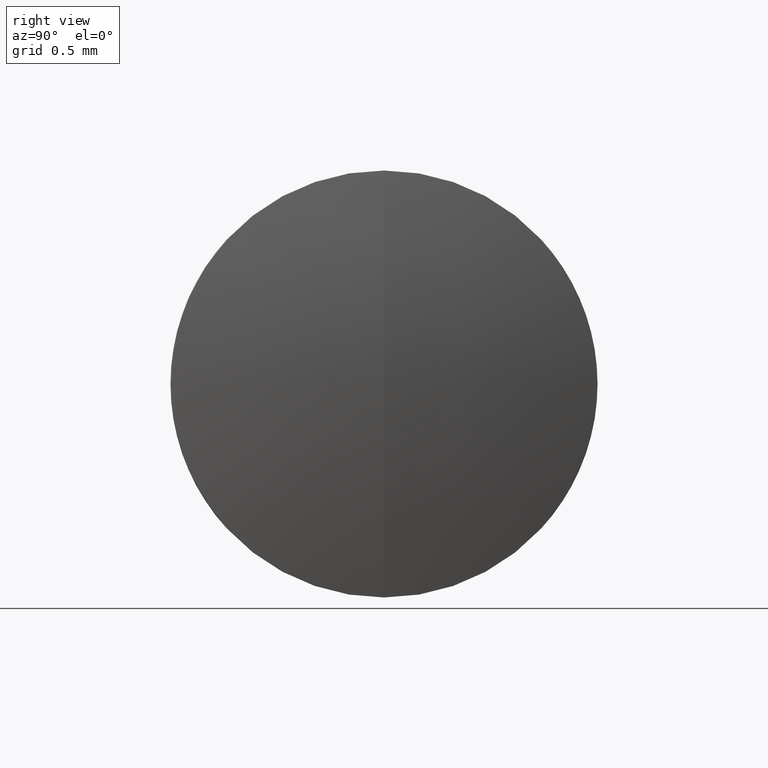
[diagram: clean part render]
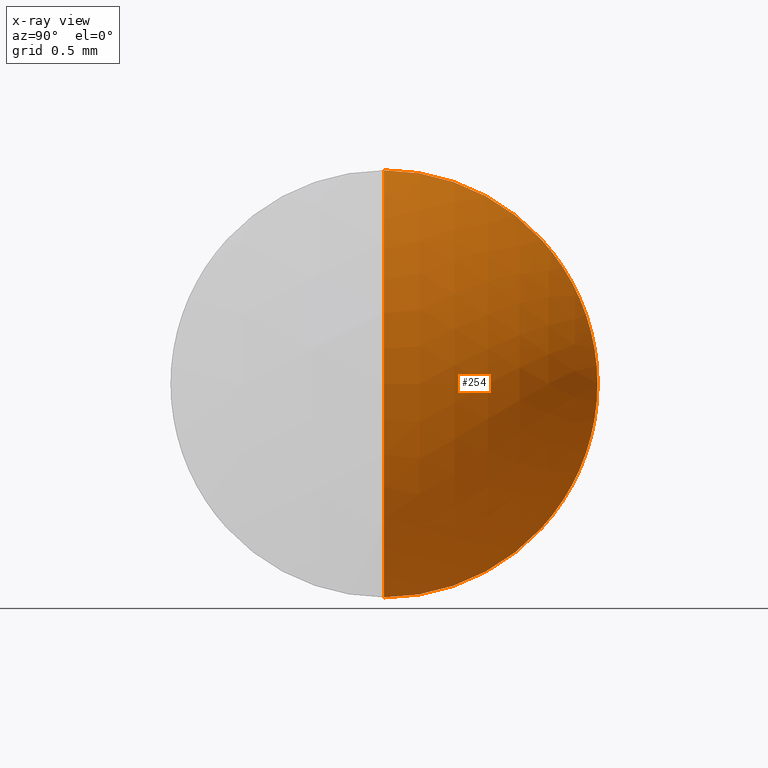
[diagram: x-ray — body ghosted, one internal face saturated and labeled with its STEP entity id]
A machine part, right view, then the same camera in x-ray: the body is ghosted and one INTERNAL B-rep face — a face not visible from any outside direction — is saturated and labeled: STEP entity #254.
In plain terms, the highlighted spherical surface has radius 1.848 mm.
Its self-contained STEP definition (entity closure, byte-faithful):
#1 = DIRECTION ( 'NONE',  ( -1.000000000000000000, -0.0000000000000000000, -0.0000000000000000000 ) ) ;
#7 = DIRECTION ( 'NONE',  ( 0.0000000000000000000, -1.000000000000000000, 0.0000000000000000000 ) ) ;
#26 = CARTESIAN_POINT ( 'NONE',  ( 0.1772124352331610800, 0.0000000000000000000, 0.0000000000000000000 ) ) ;
#51 = DIRECTION ( 'NONE',  ( 0.0000000000000000000, 1.000000000000000000, 0.0000000000000000000 ) ) ;
#66 = EDGE_CURVE ( 'NONE', #124, #256, #284, .T. ) ;
#68 = EDGE_LOOP ( 'NONE', ( #141, #309, #93 ) ) ;
#93 = ORIENTED_EDGE ( 'NONE', *, *, #176, .F. ) ;
#115 = CIRCLE ( 'NONE', #315, 1.500000000000000000 ) ;
#124 = VERTEX_POINT ( 'NONE', #242 ) ;
#135 = DIRECTION ( 'NONE',  ( 0.0000000000000000000, -1.224646799147353200E-016, 1.000000000000000000 ) ) ;
#141 = ORIENTED_EDGE ( 'NONE', *, *, #66, .F. ) ;
#162 = CARTESIAN_POINT ( 'NONE',  ( 0.1772124352331610800, 0.0000000000000000000, 0.0000000000000000000 ) ) ;
#163 = DIRECTION ( 'NONE',  ( 0.0000000000000000000, 0.0000000000000000000, 1.000000000000000000 ) ) ;
#165 = AXIS2_PLACEMENT_3D ( 'NONE', #162, #323, #135 ) ;
#171 = DIRECTION ( 'NONE',  ( 0.0000000000000000000, 0.0000000000000000000, -1.000000000000000000 ) ) ;
#176 = EDGE_CURVE ( 'NONE', #256, #291, #115, .T. ) ;
#186 = CIRCLE ( 'NONE', #165, 1.848000000000013600 ) ;
#190 = CARTESIAN_POINT ( 'NONE',  ( 1.256612268473861000, 0.0000000000000000000, 0.0000000000000000000 ) ) ;
#197 = CARTESIAN_POINT ( 'NONE',  ( 0.1772124352331610800, 0.0000000000000000000, 0.0000000000000000000 ) ) ;
#201 = AXIS2_PLACEMENT_3D ( 'NONE', #197, #7, #171 ) ;
#204 = EDGE_CURVE ( 'NONE', #124, #291, #186, .T. ) ;
#208 = CARTESIAN_POINT ( 'NONE',  ( 1.256612268473861000, 0.0000000000000000000, 1.500000000000000000 ) ) ;
#242 = CARTESIAN_POINT ( 'NONE',  ( 2.025212435233174600, 0.0000000000000000000, 1.131573642412162700E-016 ) ) ;
#254 = ADVANCED_FACE ( 'NONE', ( #299 ), #261, .T. ) ;
#256 = VERTEX_POINT ( 'NONE', #208 ) ;
#261 = SPHERICAL_SURFACE ( 'NONE', #287, 1.848000000000013600 ) ;
#275 = CARTESIAN_POINT ( 'NONE',  ( 1.256612268473861000, 1.836970198721029900E-016, -1.500000000000000000 ) ) ;
#284 = CIRCLE ( 'NONE', #201, 1.848000000000013600 ) ;
#287 = AXIS2_PLACEMENT_3D ( 'NONE', #26, #51, #346 ) ;
#291 = VERTEX_POINT ( 'NONE', #275 ) ;
#299 = FACE_OUTER_BOUND ( 'NONE', #68, .T. ) ;
#309 = ORIENTED_EDGE ( 'NONE', *, *, #204, .T. ) ;
#315 = AXIS2_PLACEMENT_3D ( 'NONE', #190, #1, #163 ) ;
#323 = DIRECTION ( 'NONE',  ( -0.0000000000000000000, 1.000000000000000000, 1.224646799147353200E-016 ) ) ;
#346 = DIRECTION ( 'NONE',  ( 0.0000000000000000000, 0.0000000000000000000, 1.000000000000000000 ) ) ;